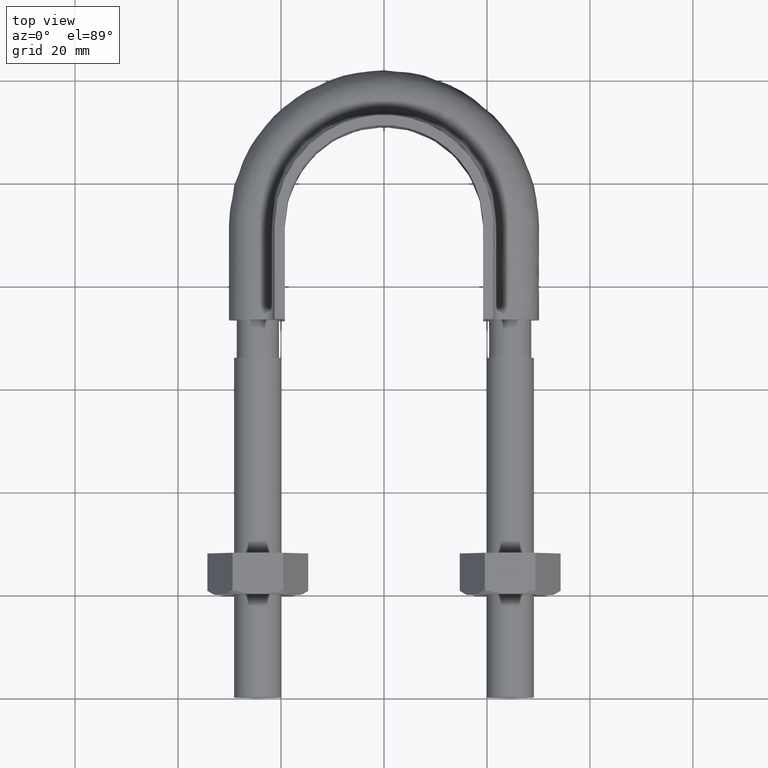
[diagram: clean part render]
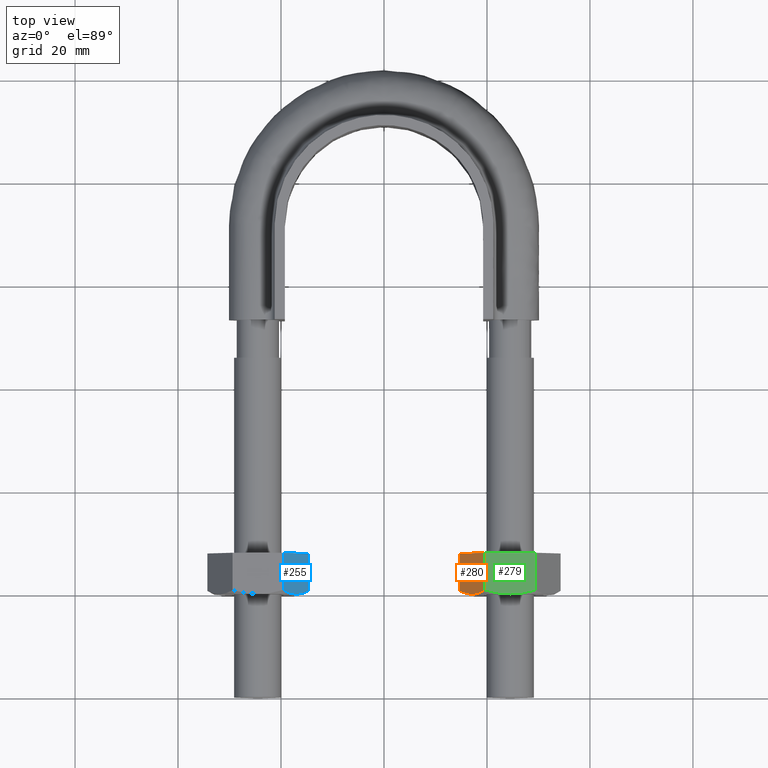
[diagram: same view with three faces highlighted in distinct colors, each labeled with its STEP entity id]
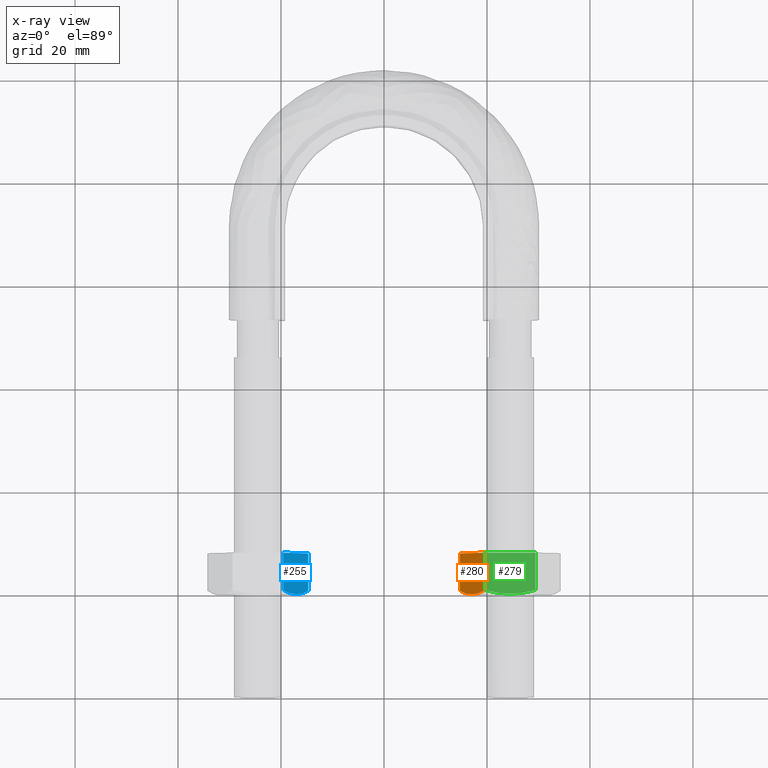
[diagram: x-ray of the same camera — body ghosted, the three highlighted faces saturated]
A machine part, top view with three faces highlighted in distinct colors.
The next image is the same camera in x-ray (body ghosted, the three faces saturated) — at least one of them is partly hidden behind the body in this view.
Their STEP definitions:

[orange] entity #280 — the highlighted planar face has unit normal (0.866, -0, -0.5).
#280 = ADVANCED_FACE( '', ( #431 ), #432, .F. );
#431 = FACE_OUTER_BOUND( '', #1274, .T. );
#432 = PLANE( '', #1275 );
#1274 = EDGE_LOOP( '', ( #1744, #1745, #1746, #1747, #1748 ) );
#1275 = AXIS2_PLACEMENT_3D( '', #1749, #1750, #1751 );
#1744 = ORIENTED_EDGE( '', *, *, #1975, .F. );
#1745 = ORIENTED_EDGE( '', *, *, #1970, .F. );
#1746 = ORIENTED_EDGE( '', *, *, #1976, .F. );
#1747 = ORIENTED_EDGE( '', *, *, #1962, .F. );
#1748 = ORIENTED_EDGE( '', *, *, #1977, .F. );
#1749 = CARTESIAN_POINT( '', ( 14.6850454237764, 28.0000000000000, 9.89822373370642E-015 ) );
#1750 = DIRECTION( '', ( 0.866025403784439, -5.90322481814055E-017, -0.500000000000000 ) );
#1751 = DIRECTION( '', ( -0.500000000000000, 3.87595688393741E-016, -0.866025403784438 ) );
#1962 = EDGE_CURVE( '', #2194, #2196, #2197, .T. );
#1970 = EDGE_CURVE( '', #2208, #2157, #2210, .T. );
#1975 = EDGE_CURVE( '', #2157, #2215, #2216, .T. );
#1976 = EDGE_CURVE( '', #2196, #2208, #2217, .F. );
#1977 = EDGE_CURVE( '', #2215, #2194, #2218, .T. );
#2157 = VERTEX_POINT( '', #2673 );
#2194 = VERTEX_POINT( '', #2728 );
#2196 = VERTEX_POINT( '', #2730 );
#2197 = LINE( '', #2731, #2732 );
#2208 = VERTEX_POINT( '', #2753 );
#2210 = B_SPLINE_CURVE_WITH_KNOTS( '', 3, ( #2755, #2756, #2757, #2758, #2759, #2760 ), .UNSPECIFIED., .F., .F., ( 4, 2, 4 ), ( 4.83064900410520E-007, 0.00246777364959070, 0.00493506423428099 ), .UNSPECIFIED. );
#2215 = VERTEX_POINT( '', #2777 );
#2216 = B_SPLINE_CURVE_WITH_KNOTS( '', 3, ( #2778, #2779, #2780, #2781, #2782, #2783, #2784, #2785 ), .UNSPECIFIED., .F., .F., ( 4, 2, 2, 4 ), ( 0.00493506423428099, 0.00616384870526321, 0.00739263317624543, 0.00985020211820987 ), .UNSPECIFIED. );
#2217 = LINE( '', #2786, #2787 );
#2218 = LINE( '', #2788, #2789 );
#2673 = CARTESIAN_POINT( '', ( 17.1387840678323, 20.0000000000000, 4.25000000000001 ) );
#2728 = CARTESIAN_POINT( '', ( 14.7000343881809, 28.0000000000000, 0.0259616479013906 ) );
#2730 = CARTESIAN_POINT( '', ( 19.5775337474837, 28.0000000000000, 8.47403835209863 ) );
#2731 = CARTESIAN_POINT( '', ( 19.5887840678323, 28.0000000000000, 8.49352447854376 ) );
#2732 = VECTOR( '', #3026, 999.999999999999 );
#2753 = CARTESIAN_POINT( '', ( 19.5775337474837, 20.7505553499465, 8.47403835209862 ) );
#2755 = CARTESIAN_POINT( '', ( 19.5775337474837, 20.7505553499465, 8.47403835209862 ) );
#2756 = CARTESIAN_POINT( '', ( 19.1784813832029, 20.5212203171278, 7.78285938228369 ) );
#2757 = CARTESIAN_POINT( '', ( 18.7765469149609, 20.3324525365440, 7.08668846197547 ) );
#2758 = CARTESIAN_POINT( '', ( 17.9644013765603, 20.0714148540586, 5.68001112632514 ) );
#2759 = CARTESIAN_POINT( '', ( 17.5541295594532, 20.0000000000000, 4.96939949418211 ) );
#2760 = CARTESIAN_POINT( '', ( 17.1387840678323, 20.0000000000000, 4.25000000000001 ) );
#2777 = CARTESIAN_POINT( '', ( 14.7000343881809, 20.7505553499465, 0.0259616479013884 ) );
#2778 = CARTESIAN_POINT( '', ( 17.1387840678323, 20.0000000000000, 4.25000000000001 ) );
#2779 = CARTESIAN_POINT( '', ( 16.9319295962256, 20.0000000000000, 3.89171754540442 ) );
#2780 = CARTESIAN_POINT( '', ( 16.7240406051186, 20.0177112081763, 3.53164325047277 ) );
#2781 = CARTESIAN_POINT( '', ( 16.3127840793211, 20.0863021936212, 2.81932605284737 ) );
#2782 = CARTESIAN_POINT( '', ( 16.1085229009408, 20.1371116504194, 2.46553531387869 ) );
#2783 = CARTESIAN_POINT( '', ( 15.4993495049988, 20.3331494013913, 1.41041604148789 ) );
#2784 = CARTESIAN_POINT( '', ( 15.0980340352877, 20.5218253127355, 0.715317258084890 ) );
#2785 = CARTESIAN_POINT( '', ( 14.7000343881809, 20.7505553499465, 0.0259616479013906 ) );
#2786 = CARTESIAN_POINT( '', ( 19.5775337474837, 28.0000000000000, 8.47403835209863 ) );
#2787 = VECTOR( '', #3041, 1000.00000000000 );
#2788 = CARTESIAN_POINT( '', ( 14.7000343881809, 28.0000000000000, 0.0259616479013923 ) );
#2789 = VECTOR( '', #3042, 1000.00000000000 );
#3026 = DIRECTION( '', ( 0.500000000000000, -3.87595688393741E-016, 0.866025403784438 ) );
#3041 = DIRECTION( '', ( 2.44921270764475E-016, 1.00000000000000, 3.06151588455594E-016 ) );
#3042 = DIRECTION( '', ( 2.44921270764475E-016, 1.00000000000000, 3.06151588455594E-016 ) );

[blue] entity #255 — the highlighted planar face has unit normal (-0.866, 0, -0.5).
#255 = ADVANCED_FACE( '', ( #376 ), #377, .F. );
#376 = FACE_OUTER_BOUND( '', #1219, .T. );
#377 = PLANE( '', #1220 );
#1219 = EDGE_LOOP( '', ( #1555, #1556, #1557, #1558, #1559 ) );
#1220 = AXIS2_PLACEMENT_3D( '', #1560, #1561, #1562 );
#1555 = ORIENTED_EDGE( '', *, *, #1919, .F. );
#1556 = ORIENTED_EDGE( '', *, *, #1886, .F. );
#1557 = ORIENTED_EDGE( '', *, *, #1920, .F. );
#1558 = ORIENTED_EDGE( '', *, *, #1903, .F. );
#1559 = ORIENTED_EDGE( '', *, *, #1914, .F. );
#1560 = CARTESIAN_POINT( '', ( -19.5925227118882, 28.0000000000000, 8.50000000000001 ) );
#1561 = DIRECTION( '', ( -0.866025403784439, 3.65183836637000E-016, -0.500000000000000 ) );
#1562 = DIRECTION( '', ( -2.44921270764476E-016, -1.00000000000000, -3.06151588455594E-016 ) );
#1886 = EDGE_CURVE( '', #2063, #2066, #2067, .T. );
#1903 = EDGE_CURVE( '', #2095, #2097, #2098, .T. );
#1914 = EDGE_CURVE( '', #2116, #2095, #2118, .T. );
#1919 = EDGE_CURVE( '', #2066, #2116, #2125, .T. );
#1920 = EDGE_CURVE( '', #2097, #2063, #2126, .F. );
#2063 = VERTEX_POINT( '', #2481 );
#2066 = VERTEX_POINT( '', #2484 );
#2067 = B_SPLINE_CURVE_WITH_KNOTS( '', 3, ( #2485, #2486, #2487, #2488, #2489, #2490 ), .UNSPECIFIED., .F., .F., ( 4, 2, 4 ), ( 0.0107224888714710, 0.0132032657403443, 0.0156840426092177 ), .UNSPECIFIED. );
#2095 = VERTEX_POINT( '', #2540 );
#2097 = VERTEX_POINT( '', #2542 );
#2098 = LINE( '', #2543, #2544 );
#2116 = VERTEX_POINT( '', #2566 );
#2118 = LINE( '', #2568, #2569 );
#2125 = B_SPLINE_CURVE_WITH_KNOTS( '', 3, ( #2589, #2590, #2591, #2592, #2593, #2594 ), .UNSPECIFIED., .F., .F., ( 4, 2, 4 ), ( 0.0156840426092177, 0.0181633795370703, 0.0206427164649230 ), .UNSPECIFIED. );
#2126 = LINE( '', #2595, #2596 );
#2481 = CARTESIAN_POINT( '', ( -14.7000343881808, 20.7505553499465, 0.0259616479013884 ) );
#2484 = CARTESIAN_POINT( '', ( -17.1387840678323, 20.0000000000000, 4.25000000000001 ) );
#2485 = CARTESIAN_POINT( '', ( -14.7000343881808, 20.7505553499465, 0.0259616479013874 ) );
#2486 = CARTESIAN_POINT( '', ( -15.0973471013618, 20.5222200930414, 0.714127453623761 ) );
#2487 = CARTESIAN_POINT( '', ( -15.4981827566703, 20.3336547117173, 1.40839517410335 ) );
#2488 = CARTESIAN_POINT( '', ( -16.3100934831092, 20.0721149177817, 2.81466580350569 ) );
#2489 = CARTESIAN_POINT( '', ( -16.7212446910265, 20.0000000000000, 3.52680058521175 ) );
#2490 = CARTESIAN_POINT( '', ( -17.1387840678323, 20.0000000000000, 4.25000000000001 ) );
#2540 = CARTESIAN_POINT( '', ( -19.5775337474837, 28.0000000000000, 8.47403835209862 ) );
#2542 = CARTESIAN_POINT( '', ( -14.7000343881808, 28.0000000000000, 0.0259616479013906 ) );
#2543 = CARTESIAN_POINT( '', ( -22.0387840678323, 28.0000000000000, 12.7370489570875 ) );
#2544 = VECTOR( '', #2927, 999.999999999999 );
#2566 = CARTESIAN_POINT( '', ( -19.5775337474837, 20.7505553499465, 8.47403835209862 ) );
#2568 = CARTESIAN_POINT( '', ( -19.5775337474837, 28.0000000000000, 8.47403835209862 ) );
#2569 = VECTOR( '', #2950, 1000.00000000000 );
#2589 = CARTESIAN_POINT( '', ( -17.1387840678323, 20.0000000000000, 4.25000000000000 ) );
#2590 = CARTESIAN_POINT( '', ( -17.5560810882682, 20.0000000000000, 4.97277964124210 ) );
#2591 = CARTESIAN_POINT( '', ( -17.9683332044331, 20.0723104611263, 5.68682125196744 ) );
#2592 = CARTESIAN_POINT( '', ( -18.7801877793121, 20.3339943747733, 7.09299462401514 ) );
#2593 = CARTESIAN_POINT( '', ( -19.1807129739459, 20.5225028103093, 7.78672461083230 ) );
#2594 = CARTESIAN_POINT( '', ( -19.5775337474837, 20.7505553499465, 8.47403835209862 ) );
#2595 = CARTESIAN_POINT( '', ( -14.7000343881808, 28.0000000000000, 0.0259616479013906 ) );
#2596 = VECTOR( '', #2955, 1000.00000000000 );
#2927 = DIRECTION( '', ( 0.500000000000000, 1.42674417629266E-016, -0.866025403784439 ) );
#2950 = DIRECTION( '', ( 2.44921270764475E-016, 1.00000000000000, 3.06151588455594E-016 ) );
#2955 = DIRECTION( '', ( 2.44921270764475E-016, 1.00000000000000, 3.06151588455594E-016 ) );

[green] entity #279 — the highlighted planar face has unit normal (0, 0, -1).
#279 = ADVANCED_FACE( '', ( #429 ), #430, .F. );
#429 = FACE_OUTER_BOUND( '', #1272, .T. );
#430 = PLANE( '', #1273 );
#1272 = EDGE_LOOP( '', ( #1736, #1737, #1738, #1739, #1740 ) );
#1273 = AXIS2_PLACEMENT_3D( '', #1741, #1742, #1743 );
#1736 = ORIENTED_EDGE( '', *, *, #1968, .F. );
#1737 = ORIENTED_EDGE( '', *, *, #1973, .F. );
#1738 = ORIENTED_EDGE( '', *, *, #1967, .F. );
#1739 = ORIENTED_EDGE( '', *, *, #1964, .F. );
#1740 = ORIENTED_EDGE( '', *, *, #1974, .F. );
#1741 = CARTESIAN_POINT( '', ( 19.5925227118882, 28.0000000000000, 8.50000000000001 ) );
#1742 = DIRECTION( '', ( 6.88766221184935E-047, 3.06151588455594E-016, -1.00000000000000 ) );
#1743 = DIRECTION( '', ( -1.00000000000000, 2.44921270764475E-016, 7.49830360911068E-032 ) );
#1964 = EDGE_CURVE( '', #2198, #2180, #2200, .T. );
#1967 = EDGE_CURVE( '', #2180, #2201, #2205, .F. );
#1968 = EDGE_CURVE( '', #2158, #2206, #2207, .T. );
#1973 = EDGE_CURVE( '', #2201, #2158, #2213, .T. );
#1974 = EDGE_CURVE( '', #2206, #2198, #2214, .T. );
#2158 = VERTEX_POINT( '', #2674 );
#2180 = VERTEX_POINT( '', #2711 );
#2198 = VERTEX_POINT( '', #2733 );
#2200 = LINE( '', #2735, #2736 );
#2201 = VERTEX_POINT( '', #2737 );
#2205 = LINE( '', #2742, #2743 );
#2206 = VERTEX_POINT( '', #2744 );
#2207 = B_SPLINE_CURVE_WITH_KNOTS( '', 3, ( #2745, #2746, #2747, #2748, #2749, #2750, #2751, #2752 ), .UNSPECIFIED., .F., .F., ( 4, 2, 2, 4 ), ( 0.00493529902949373, 0.00616408349151779, 0.00739286795354185, 0.00985043687758998 ), .UNSPECIFIED. );
#2213 = B_SPLINE_CURVE_WITH_KNOTS( '', 3, ( #2769, #2770, #2771, #2772, #2773, #2774 ), .UNSPECIFIED., .F., .F., ( 4, 2, 4 ), ( 7.17194508352322E-007, 0.00246800811200104, 0.00493529902949373 ), .UNSPECIFIED. );
#2214 = LINE( '', #2775, #2776 );
#2674 = CARTESIAN_POINT( '', ( 24.5000000000000, 20.0000000000000, 8.50000000000000 ) );
#2711 = CARTESIAN_POINT( '', ( 29.3774993593029, 28.0000000000000, 8.50000000000000 ) );
#2733 = CARTESIAN_POINT( '', ( 19.6225006406971, 28.0000000000000, 8.50000000000001 ) );
#2735 = CARTESIAN_POINT( '', ( 19.6000000000000, 28.0000000000000, 8.50000000000001 ) );
#2736 = VECTOR( '', #3030, 999.999999999999 );
#2737 = CARTESIAN_POINT( '', ( 29.3774993593029, 20.7505553499465, 8.50000000000000 ) );
#2742 = CARTESIAN_POINT( '', ( 29.3774993593029, 28.0000000000000, 8.50000000000001 ) );
#2743 = VECTOR( '', #3035, 1000.00000000000 );
#2744 = CARTESIAN_POINT( '', ( 19.6225006406971, 20.7505553499465, 8.50000000000000 ) );
#2745 = CARTESIAN_POINT( '', ( 24.5000000000000, 20.0000000000000, 8.50000000000000 ) );
#2746 = CARTESIAN_POINT( '', ( 24.0862903722491, 20.0000000000000, 8.50000000000001 ) );
#2747 = CARTESIAN_POINT( '', ( 23.6705131783975, 20.0177112141220, 8.50000000000001 ) );
#2748 = CARTESIAN_POINT( '', ( 22.8480009983425, 20.0863020976799, 8.50000000000000 ) );
#2749 = CARTESIAN_POINT( '', ( 22.4394788820032, 20.1371114863339, 8.50000000000000 ) );
#2750 = CARTESIAN_POINT( '', ( 21.2211323152193, 20.3331491064655, 8.50000000000000 ) );
#2751 = CARTESIAN_POINT( '', ( 20.4185008687927, 20.5218250443850, 8.50000000000000 ) );
#2752 = CARTESIAN_POINT( '', ( 19.6225006406971, 20.7505553499465, 8.50000000000000 ) );
#2769 = CARTESIAN_POINT( '', ( 29.3774993593029, 20.7505553499465, 8.50000000000000 ) );
#2770 = CARTESIAN_POINT( '', ( 28.5793958257588, 20.5212206605155, 8.50000000000001 ) );
#2771 = CARTESIAN_POINT( '', ( 27.7755276393733, 20.3324529479805, 8.50000000000001 ) );
#2772 = CARTESIAN_POINT( '', ( 26.1512367166361, 20.0714150925759, 8.50000000000000 ) );
#2773 = CARTESIAN_POINT( '', ( 25.3306924758373, 20.0000000000000, 8.50000000000000 ) );
#2774 = CARTESIAN_POINT( '', ( 24.5000000000000, 20.0000000000000, 8.50000000000000 ) );
#2775 = CARTESIAN_POINT( '', ( 19.6225006406971, 28.0000000000000, 8.50000000000001 ) );
#2776 = VECTOR( '', #3040, 1000.00000000000 );
#3030 = DIRECTION( '', ( 1.00000000000000, -2.44921270764475E-016, 0.000000000000000 ) );
#3035 = DIRECTION( '', ( 2.44921270764475E-016, 1.00000000000000, 3.06151588455594E-016 ) );
#3040 = DIRECTION( '', ( 2.44921270764475E-016, 1.00000000000000, 3.06151588455594E-016 ) );